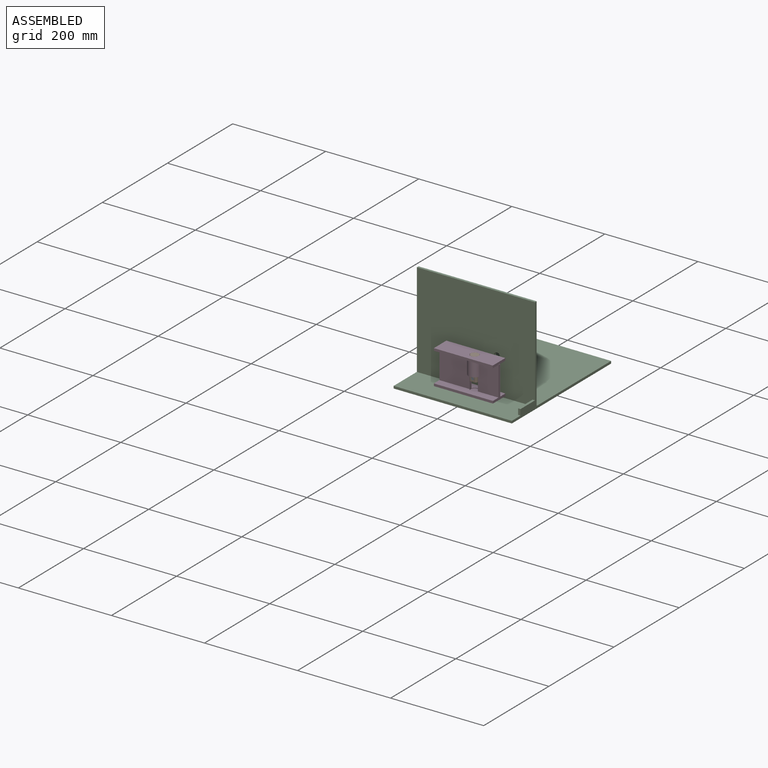
[diagram: assembled view]
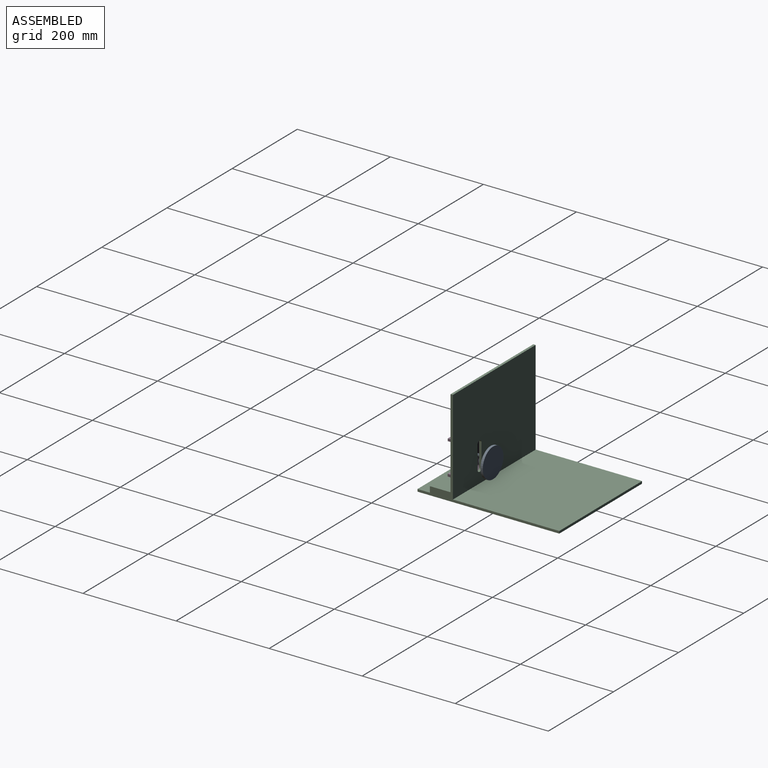
[diagram: assembled view, second angle]
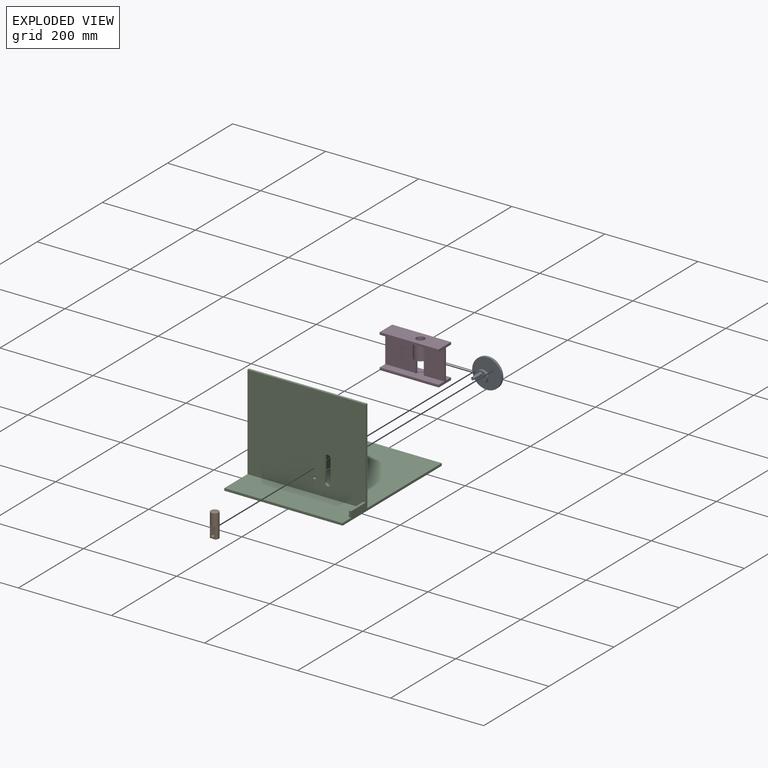
[diagram: exploded view]
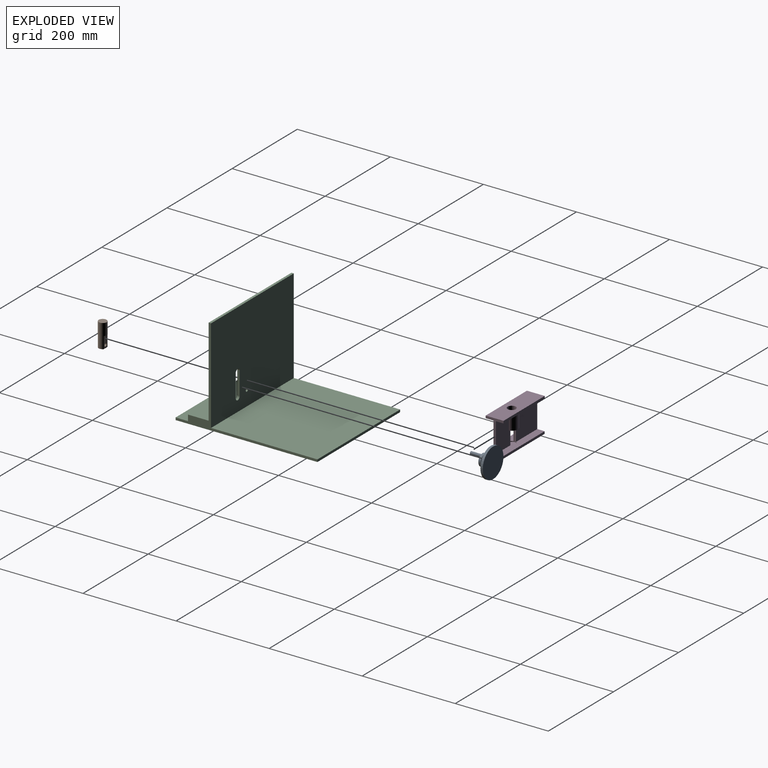
[diagram: exploded view, second angle]
ASSEMBLY  parts=4 mates=3
PART A: 9 faces, bbox 63.5x48.3x63.5 mm
  f0: cylinder r=31.75mm len=63.5mm, axis (0,1,0), area 1013.4mm2, adj f1,f2
  f1: plane 63.5x63.5mm, normal (0,-1,0), area 3135.3mm2, adj f0,f3
  f2: plane 63.5x63.5mm, normal (0,1,0), area 3166.9mm2, adj f0
  f3: cylinder r=3.17mm len=12.7mm, axis (0,1,0), area 253.4mm2, adj f1,f6
  f4: cylinder r=12.7mm len=25.4mm, axis (0,1,0), area 405.4mm2, adj f5,f6
  f5: plane 25.4x25.4mm, normal (0,-1,0), area 475mm2, adj f4,f7
  f6: plane 25.4x25.4mm, normal (0,1,0), area 475mm2, adj f3,f4
  f7: cylinder r=3.17mm len=25.4mm, axis (0,1,0), area 506.7mm2, adj f5,f8
  f8: plane 6.35x6.35mm, normal (0,-1,0), area 31.7mm2, adj f7
PART B: 8 faces, bbox 17.3x17.3x50.8 mm
  f0: cylinder r=8.64mm len=50.8mm, axis (0,0,-1), area 2103.1mm2, adj f1,f2,f3,f4,f5,f6
  f1: plane 17.27x12.7mm, normal (0,0,-1), area 197.6mm2, adj f0,f4,f6
  f2: plane 17.27x17.27mm, normal (0,0,1), area 234.3mm2, adj f0
  f3: plane 11.71x2.29mm, normal (0,0,-1), area 18.4mm2, adj f0,f4
  f4: plane 25.4x11.71mm, normal (1,0,0), area 263.1mm2, adj f0,f1,f3,f7
  f5: plane 11.71x2.29mm, normal (0,0,-1), area 18.4mm2, adj f0,f6
  f6: plane 25.4x11.71mm, normal (-1,0,0), area 263.1mm2, adj f0,f1,f5,f7
  f7: cylinder r=3.3mm len=12.7mm, axis (1,0,0), area 263.5mm2, adj f4,f6
PART C: 20 faces, bbox 254x304.8x208.3 mm
  f0: plane 254x71.12mm, normal (0,0,1), area 17838.7mm2, adj f1,f3,f5,f6,f11,f12
  f1: plane 254x203.2mm, normal (0,-1,0), area 50830.8mm2, adj f0,f3,f5,f9,f10,f12,f13,f14
  f2: plane 254x228.6mm, normal (0,0,1), area 58064.4mm2, adj f3,f4,f5,f8
  f3: plane 304.8x208.28mm, normal (1,0,0), area 3145.2mm2, adj f0,f1,f2,f4,f6,f7,f8,f9
  f4: plane 254x5.08mm, normal (0,1,0), area 1290.3mm2, adj f2,f3,f5,f7
  f5: plane 304.8x208.28mm, normal (-1,0,0), area 2580.6mm2, adj f0,f1,f2,f4,f6,f7,f8,f9
  f6: plane 254x5.08mm, normal (0,-1,0), area 1290.3mm2, adj f0,f3,f5,f7
  f7: plane 304.8x254mm, normal (0,0,-1), area 77419.2mm2, adj f3,f4,f5,f6
  f8: plane 254x203.2mm, normal (0,1,0), area 50895.3mm2, adj f2,f3,f5,f9,f10,f14,f15,f16
  f9: plane 254x5.08mm, normal (0,0,1), area 1290.3mm2, adj f1,f3,f5,f8
  f10: cylinder r=3.3mm len=6.6mm, axis (0,-1,0), area 105.4mm2, adj f1,f8
  f11: plane 12.7x5.08mm, normal (0,-1,0), area 64.5mm2, adj f0,f3,f12,f13
  f12: plane 44.45x12.7mm, normal (-1,0,0), area 564.5mm2, adj f0,f1,f11,f13
  f13: plane 44.45x5.08mm, normal (0,0,1), area 225.8mm2, adj f1,f3,f11,f12
  f14: cylinder r=5.86mm len=5.08mm, axis (0,-1,0), area 1.4mm2, adj f1,f8,f15,f19
  f15: plane 50.53x5.08mm, normal (1,0,0), area 256.7mm2, adj f1,f8,f14,f16
  f16: cylinder r=5.86mm len=11.72mm, axis (0,-1,0), area 93.5mm2, adj f1,f8,f15,f17
  f17: plane 50.53x5.08mm, normal (-1,0,0), area 256.7mm2, adj f1,f8,f16,f18
  f18: cylinder r=5.86mm len=5.08mm, axis (0,-1,0), area 1.4mm2, adj f1,f8,f17,f19
  f19: cylinder r=6.31mm len=11.72mm, axis (0,-1,0), area 76.4mm2, adj f1,f8,f14,f18
PART D: 24 faces, bbox 127x38.4x73.7 mm
  f0: plane 65.67x63.5mm, normal (0,1,0), area 4013.3mm2, adj f3,f4,f17,f18,f20,f21
  f1: plane 65.46x63.5mm, normal (0,-1,0), area 4002.5mm2, adj f4,f8,f12,f18,f22,f23
  f2: plane 5.08x0.39mm, normal (0,0,1), area 2mm2, adj f6,f10,f11,f15
  f3: plane 127x15.9mm, normal (0,0,1), area 1945.5mm2, adj f0,f4,f6,f7,f10,f18
  f4: plane 73.66x38.36mm, normal (-1,0,0), area 711mm2, adj f0,f1,f3,f5,f7,f8,f9,f12
  f5: plane 127x5.08mm, normal (0,-1,0), area 645.2mm2, adj f4,f6,f8,f9
  f6: plane 68.58x38.1mm, normal (1,0,0), area 516.1mm2, adj f2,f3,f5,f7,f8,f9,f10,f11
  f7: plane 127x5.08mm, normal (0,1,0), area 645.2mm2, adj f3,f4,f6,f9
  f8: plane 127x17.12mm, normal (0,0,1), area 2088.7mm2, adj f1,f4,f5,f6,f11,f18
  f9: plane 127x38.1mm, normal (0,0,-1), area 4838.7mm2, adj f4,f5,f6,f7
  f10: plane 63.5x44.52mm, normal (0,1,0), area 2670.4mm2, adj f2,f3,f6,f17,f18,f20,f21
  f11: plane 63.5x44.31mm, normal (0,-1,0), area 2659.6mm2, adj f2,f6,f8,f12,f18,f22,f23
  f12: plane 126.61x17.12mm, normal (0,0,-1), area 1941.6mm2, adj f1,f4,f11,f14,f15,f22
  f13: plane 126.61x5.08mm, normal (0,1,0), area 643.2mm2, adj f4,f15,f16,f17
  f14: plane 126.61x5.08mm, normal (0,-1,0), area 643.2mm2, adj f4,f12,f15,f16
  f15: plane 38.36x5.08mm, normal (1,0,0), area 194.9mm2, adj f2,f12,f13,f14,f16,f17
  f16: plane 126.61x38.36mm, normal (0,0,1), area 4608.5mm2, adj f4,f13,f14,f15,f18
  f17: plane 126.61x16.16mm, normal (0,0,-1), area 1838.6mm2, adj f0,f4,f10,f13,f15,f20
  f18: cylinder r=8.89mm len=69.85mm, axis (0,0,1), area 2513.4mm2, adj f0,f1,f3,f8,f10,f11,f16,f19
  f19: plane 17.78x17.78mm, normal (0,0,1), area 248.3mm2, adj f18
  f20: cylinder r=13.46mm len=33.02mm, axis (0,0,1), area 1204.2mm2, adj f0,f10,f17,f21
  f21: plane 26.3x10.57mm, normal (0,0,-1), area 133.8mm2, adj f0,f10,f18,f20
  f22: cylinder r=13.46mm len=33.02mm, axis (0,0,1), area 1251.1mm2, adj f1,f11,f12,f23
  f23: plane 26.57x11.27mm, normal (0,0,-1), area 140.4mm2, adj f1,f11,f18,f22
PLACE A rot(axis=(0,-1,0),5.7deg) t=(17.05,-66.8,36.83)mm
PLACE B rot(axis=(0,0,-1),90deg) t=(16.42,-108.71,36.8)mm
PLACE C at identity
PLACE D t=(-57.66,-128.02,13.95)mm
MATE revolute A.f7 <-> B.f7  axis (0,-1,0) through (16.42,-115.06,43.15)mm
MATE revolute A.f3 <-> C.f10  axis (0,1,0) through (17.05,-78.23,36.83)mm
MATE slider B.f0 <-> D.f18  axis (0,0,1) through (16.42,-108.71,87.6)mm
